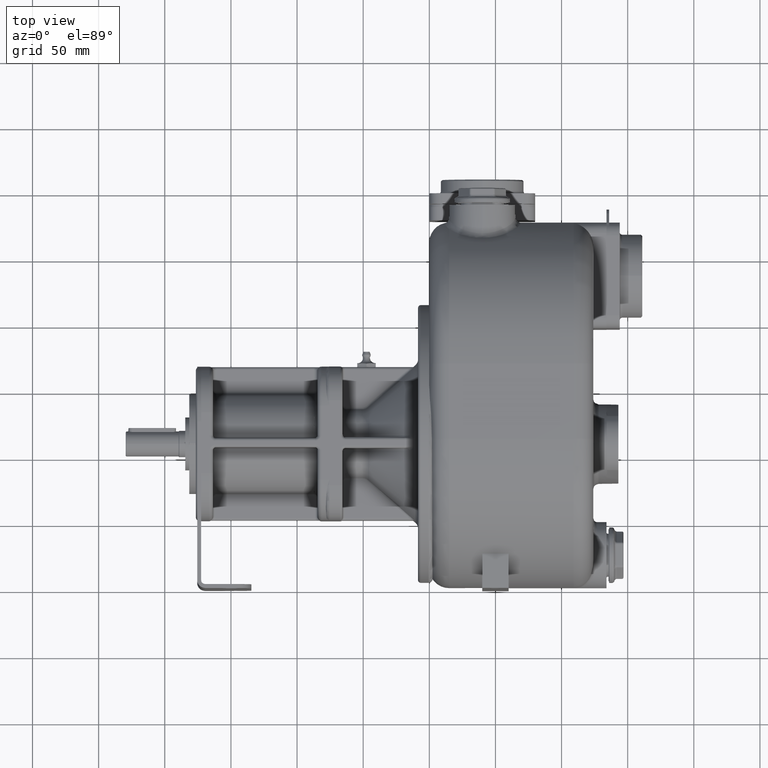
[diagram: clean part render]
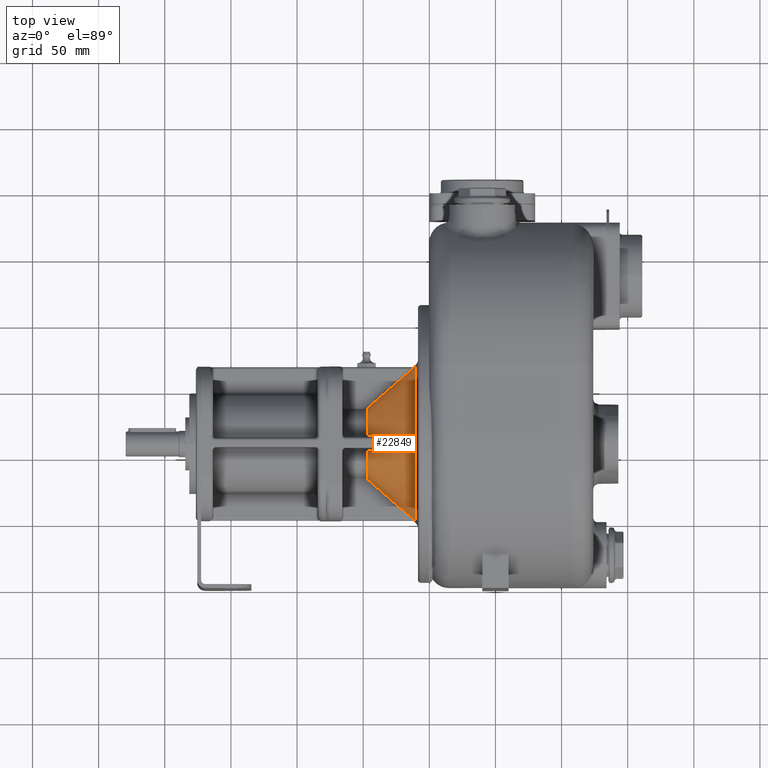
[diagram: same view with one face highlighted and labeled with its STEP entity id]
A machine part, top view. The second image highlights one B-rep face of the part: STEP entity #22849.
In plain terms, the highlighted conical surface has half-angle 40 deg.
Its self-contained STEP definition (entity closure, byte-faithful):
#5907=DIRECTION('',(7.660442050024E-1,-6.427878934627E-1,3.470816919564E-12));
#5908=VECTOR('',#5907,1.473006843776E0);
#5909=CARTESIAN_POINT('',(-6.177166269848E1,5.153208930424E1,
-4.209174529895E-12));
#5910=LINE('',#5909,#5908);
#5916=DIRECTION('',(7.660442053993E-1,6.427878929898E-1,-3.426566255286E-12));
#5917=VECTOR('',#5916,1.473006843776E0);
#5918=CARTESIAN_POINT('',(-6.177166269907E1,1.684679106965E2,
4.142164205678E-12));
#5919=LINE('',#5918,#5917);
#6757=CARTESIAN_POINT('',(-6.615670070720E1,1.041632190064E2,5.447662244532E1));
#6758=CARTESIAN_POINT('',(-6.605596487385E1,1.041629687514E2,5.456160259990E1));
#6759=CARTESIAN_POINT('',(-6.585661195174E1,1.041677110169E2,5.473036608960E1));
#6760=CARTESIAN_POINT('',(-6.556318024783E1,1.041902680673E2,5.498035479103E1));
#6761=CARTESIAN_POINT('',(-6.527730344996E1,1.042274524862E2,5.522547076429E1));
#6762=CARTESIAN_POINT('',(-6.500012186262E1,1.042787040815E2,5.546463117071E1));
#6763=CARTESIAN_POINT('',(-6.473288331561E1,1.043431907229E2,5.569664939220E1));
#6764=CARTESIAN_POINT('',(-6.447661561340E1,1.044197384846E2,5.592048292267E1));
#6765=CARTESIAN_POINT('',(-6.423248078870E1,1.045073354573E2,5.613499597771E1));
#6766=CARTESIAN_POINT('',(-6.400116539531E1,1.046048277625E2,5.633944281932E1));
#6767=CARTESIAN_POINT('',(-6.378276335703E1,1.047109336166E2,5.653357161062E1));
#6768=CARTESIAN_POINT('',(-6.357755796456E1,1.048247219169E2,5.671701128499E1));
#6769=CARTESIAN_POINT('',(-6.338560123394E1,1.049451232231E2,5.688957946562E1));
#6770=CARTESIAN_POINT('',(-6.320655571261E1,1.050709559760E2,5.705142105506E1));
#6771=CARTESIAN_POINT('',(-6.304029143997E1,1.052014985158E2,5.720255494854E1));
#6772=CARTESIAN_POINT('',(-6.288652101803E1,1.053359100652E2,5.734312868081E1));
#6773=CARTESIAN_POINT('',(-6.274464618598E1,1.054732500874E2,5.747355164821E1));
#6774=CARTESIAN_POINT('',(-6.261431088306E1,1.056130171274E2,5.759407165385E1));
#6775=CARTESIAN_POINT('',(-6.249506490692E1,1.057547163363E2,5.770502028596E1));
#6776=CARTESIAN_POINT('',(-6.238624933596E1,1.058977282988E2,5.780690051436E1));
#6777=CARTESIAN_POINT('',(-6.228741698541E1,1.060416820391E2,5.790006005553E1));
#6778=CARTESIAN_POINT('',(-6.219813520485E1,1.061863668314E2,5.798484796853E1));
#6779=CARTESIAN_POINT('',(-6.211785941128E1,1.063314891915E2,5.806170365395E1));
#6780=CARTESIAN_POINT('',(-6.204616352011E1,1.064766813477E2,5.813096494787E1));
#6781=CARTESIAN_POINT('',(-6.198272367383E1,1.066217115777E2,5.819289500184E1));
#6782=CARTESIAN_POINT('',(-6.192715029888E1,1.067664797926E2,5.824782138097E1));
#6783=CARTESIAN_POINT('',(-6.187902169399E1,1.069109875563E2,5.829610438039E1));
#6784=CARTESIAN_POINT('',(-6.183795357672E1,1.070551647336E2,5.833806887883E1));
#6785=CARTESIAN_POINT('',(-6.180366801666E1,1.071992137057E2,5.837396376089E1));
#6786=CARTESIAN_POINT('',(-6.177607059178E1,1.073430930129E2,5.840386966451E1));
#6787=CARTESIAN_POINT('',(-6.175486078990E1,1.074863789764E2,5.842802492547E1));
#6788=CARTESIAN_POINT('',(-6.173986645330E1,1.076291316696E2,5.844658236592E1));
#6789=CARTESIAN_POINT('',(-6.173111752313E1,1.077703318698E2,5.845948514500E1));
#6790=CARTESIAN_POINT('',(-6.172818744113E1,1.079115558415E2,5.846716007901E1));
#6791=CARTESIAN_POINT('',(-6.173006415562E1,1.080046899953E2,5.846879932259E1));
#6792=CARTESIAN_POINT('',(-6.173195015501E1,1.080510006196E2,5.846875921689E1));
#6794=CARTESIAN_POINT('',(-6.173195015501E1,1.080510006196E2,5.846875921689E1));
#6795=CARTESIAN_POINT('',(-6.174524379494E1,1.083772926862E2,5.846847497189E1));
#6796=CARTESIAN_POINT('',(-6.176510585039E1,1.090292187820E2,5.846806641038E1));
#6797=CARTESIAN_POINT('',(-6.177503762473E1,1.100050089272E2,5.846781336301E1));
#6798=CARTESIAN_POINT('',(-6.176469435276E1,1.109827831440E2,5.846816851076E1));
#6799=CARTESIAN_POINT('',(-6.174546013205E1,1.116253919338E2,5.846823732025E1));
#6800=CARTESIAN_POINT('',(-6.173211282453E1,1.119525683151E2,5.846850619344E1));
#6802=CARTESIAN_POINT('',(-6.173211282453E1,1.119525683151E2,5.846850619344E1));
#6803=CARTESIAN_POINT('',(-6.173032701874E1,1.119961215749E2,5.846854621897E1));
#6804=CARTESIAN_POINT('',(-6.172796333134E1,1.120955362102E2,5.846709967457E1));
#6805=CARTESIAN_POINT('',(-6.173136855757E1,1.122336573161E2,5.845911891417E1));
#6806=CARTESIAN_POINT('',(-6.174025229251E1,1.123751640489E2,5.844608468890E1));
#6807=CARTESIAN_POINT('',(-6.175527933486E1,1.125172114372E2,5.842751797360E1));
#6808=CARTESIAN_POINT('',(-6.177659855493E1,1.126599760839E2,5.840328614661E1));
#6809=CARTESIAN_POINT('',(-6.180426524863E1,1.128032906423E2,5.837334140369E1));
#6810=CARTESIAN_POINT('',(-6.183848226837E1,1.129469654317E2,5.833751685901E1));
#6811=CARTESIAN_POINT('',(-6.187956006250E1,1.130908219479E2,5.829555583456E1));
#6812=CARTESIAN_POINT('',(-6.192773710420E1,1.132350780883E2,5.824724159309E1));
#6813=CARTESIAN_POINT('',(-6.198333872866E1,1.133797335337E2,5.819229403048E1));
#6814=CARTESIAN_POINT('',(-6.204674814666E1,1.135246104217E2,5.813039503960E1));
#6815=CARTESIAN_POINT('',(-6.211843558564E1,1.136696681614E2,5.806114600672E1));
#6816=CARTESIAN_POINT('',(-6.219884112835E1,1.138147710725E2,5.798417958108E1));
#6817=CARTESIAN_POINT('',(-6.228831085645E1,1.139596631844E2,5.789921656449E1));
#6818=CARTESIAN_POINT('',(-6.238742730692E1,1.141039936424E2,5.780578773353E1));
#6819=CARTESIAN_POINT('',(-6.249674504099E1,1.142473870506E2,5.770345225899E1));
#6820=CARTESIAN_POINT('',(-6.261659161928E1,1.143894952296E2,5.759196134302E1));
#6821=CARTESIAN_POINT('',(-6.274749014452E1,1.145297116058E2,5.747092492310E1));
#6822=CARTESIAN_POINT('',(-6.289002275290E1,1.146673498513E2,5.733991563572E1));
#6823=CARTESIAN_POINT('',(-6.304449039364E1,1.148019110760E2,5.719873327470E1));
#6824=CARTESIAN_POINT('',(-6.321130482081E1,1.149326065246E2,5.704711343071E1));
#6825=CARTESIAN_POINT('',(-6.339086145605E1,1.150584048991E2,5.688483451538E1));
#6826=CARTESIAN_POINT('',(-6.358327404424E1,1.151785884194E2,5.671189268746E1));
#6827=CARTESIAN_POINT('',(-6.378873520119E1,1.152921860740E2,5.652824661687E1));
#6828=CARTESIAN_POINT('',(-6.400725772643E1,1.153979461461E2,5.633404133070E1));
#6829=CARTESIAN_POINT('',(-6.423854694619E1,1.154949734449E2,5.612965528070E1));
#6830=CARTESIAN_POINT('',(-6.448242477414E1,1.155821753546E2,5.591539294819E1));
#6831=CARTESIAN_POINT('',(-6.473822013404E1,1.156582433875E2,5.569200222508E1));
#6832=CARTESIAN_POINT('',(-6.500478351131E1,1.157222342020E2,5.546060181487E1));
#6833=CARTESIAN_POINT('',(-6.528105289947E1,1.157731324112E2,5.522224603999E1));
#6834=CARTESIAN_POINT('',(-6.556583767592E1,1.158100005123E2,5.497808441828E1));
#6835=CARTESIAN_POINT('',(-6.585801794927E1,1.158323128320E2,5.472917550910E1));
#6836=CARTESIAN_POINT('',(-6.605645100493E1,1.158370246237E2,5.456119633929E1));
#6837=CARTESIAN_POINT('',(-6.615669959682E1,1.158367808594E2,5.447662122035E1));
#6839=CARTESIAN_POINT('',(-6.615669959682E1,1.158367808594E2,5.447662122035E1));
#6840=CARTESIAN_POINT('',(-6.813293958936E1,1.158319751831E2,5.280938280624E1));
#6841=CARTESIAN_POINT('',(-7.186802502656E1,1.158220359194E2,4.965676095884E1));
#6842=CARTESIAN_POINT('',(-7.677361419891E1,1.158065427903E2,4.551169060776E1));
#6843=CARTESIAN_POINT('',(-8.111867894714E1,1.157903923340E2,4.183585195427E1));
#6844=CARTESIAN_POINT('',(-8.497611983365E1,1.157736164911E2,3.856812882675E1));
#6845=CARTESIAN_POINT('',(-8.840509368772E1,1.157562725723E2,3.565899840898E1));
#6846=CARTESIAN_POINT('',(-9.141171604925E1,1.157387152460E2,3.310397970210E1));
#6847=CARTESIAN_POINT('',(-9.406293373072E1,1.157210109679E2,3.084702263221E1));
#6848=CARTESIAN_POINT('',(-9.565908952329E1,1.157088958881E2,2.948563639831E1));
#6849=CARTESIAN_POINT('',(-9.640900226245E1,1.157028517119E2,2.884539967561E1));
#6851=CARTESIAN_POINT('',(-9.640900132538E1,1.1E2,0.E0));
#6852=DIRECTION('',(-1.E0,0.E0,0.E0));
#6853=DIRECTION('',(0.E0,1.939499120428E-1,9.810114329704E-1));
#6854=AXIS2_PLACEMENT_3D('',#6851,#6852,#6853);
#6856=CARTESIAN_POINT('',(-9.640900221945E1,1.371014672470E2,1.140570340390E1));
#6857=CARTESIAN_POINT('',(-9.597702519027E1,1.374918011670E2,1.141266673230E1));
#6858=CARTESIAN_POINT('',(-9.508750780741E1,1.382934269769E2,1.142650606308E1));
#6859=CARTESIAN_POINT('',(-9.369002274332E1,1.395464380919E2,1.144676365801E1));
#6860=CARTESIAN_POINT('',(-9.218788575474E1,1.408868418474E2,1.146701483152E1));
#6861=CARTESIAN_POINT('',(-9.055425326079E1,1.423378628488E2,1.148741716566E1));
#6862=CARTESIAN_POINT('',(-8.875746128826E1,1.439266896051E2,1.150814157777E1));
#6863=CARTESIAN_POINT('',(-8.676967275482E1,1.456767854455E2,1.152919417571E1));
#6864=CARTESIAN_POINT('',(-8.457814541127E1,1.475981990744E2,1.155041800881E1));
#6865=CARTESIAN_POINT('',(-8.213877452657E1,1.497283703291E2,1.157190891099E1));
#6866=CARTESIAN_POINT('',(-7.939067413932E1,1.521188806064E2,1.159378839165E1));
#6867=CARTESIAN_POINT('',(-7.630773181743E1,1.547906974900E2,1.161582170207E1));
#6868=CARTESIAN_POINT('',(-7.291077901951E1,1.577243634361E2,1.163742708760E1));
#6869=CARTESIAN_POINT('',(-6.921783130175E1,1.609035074040E2,1.165848827662E1));
#6870=CARTESIAN_POINT('',(-6.646673158455E1,1.632650220567E2,1.167197559207E1));
#6871=CARTESIAN_POINT('',(-6.502101693674E1,1.645041985187E2,1.167877330986E1));
#6873=CARTESIAN_POINT('',(-6.502101693674E1,1.645041985187E2,1.167877330986E1));
#6874=CARTESIAN_POINT('',(-6.492593057800E1,1.645857001565E2,1.167922077235E1));
#6875=CARTESIAN_POINT('',(-6.472974143873E1,1.647549113532E2,1.167517208636E1));
#6876=CARTESIAN_POINT('',(-6.445222088345E1,1.649975000607E2,1.165393777627E1));
#6877=CARTESIAN_POINT('',(-6.418141319109E1,1.652371800659E2,1.161874340217E1));
#6878=CARTESIAN_POINT('',(-6.392134750513E1,1.654703200456E2,1.157015656749E1));
#6879=CARTESIAN_POINT('',(-6.367219685599E1,1.656965284788E2,1.150907034022E1));
#6880=CARTESIAN_POINT('',(-6.343506179734E1,1.659146030842E2,1.143646104440E1));
#6881=CARTESIAN_POINT('',(-6.321077706157E1,1.661235416589E2,1.135346675876E1));
#6882=CARTESIAN_POINT('',(-6.299990979426E1,1.663225631992E2,1.126130456269E1));
#6883=CARTESIAN_POINT('',(-6.280237703916E1,1.665114867401E2,1.116101822175E1));
#6884=CARTESIAN_POINT('',(-6.261812376137E1,1.666901201583E2,1.105362708242E1));
#6885=CARTESIAN_POINT('',(-6.244697691456E1,1.668583790347E2,1.094016093602E1));
#6886=CARTESIAN_POINT('',(-6.228857616344E1,1.670163735267E2,1.082151646595E1));
#6887=CARTESIAN_POINT('',(-6.214253690914E1,1.671642612980E2,1.069848927977E1));
#6888=CARTESIAN_POINT('',(-6.200837142063E1,1.673022934896E2,1.057188478453E1));
#6889=CARTESIAN_POINT('',(-6.188563840845E1,1.674307262081E2,1.044230327012E1));
#6890=CARTESIAN_POINT('',(-6.177372186031E1,1.675499684728E2,1.031035232068E1));
#6891=CARTESIAN_POINT('',(-6.167213442545E1,1.676603635424E2,1.017642020796E1));
#6892=CARTESIAN_POINT('',(-6.158028780625E1,1.677623426107E2,1.004090031454E1));
#6893=CARTESIAN_POINT('',(-6.149773138075E1,1.678562275684E2,9.904157651614E0));
#6894=CARTESIAN_POINT('',(-6.142400053539E1,1.679423797741E2,9.766410963055E0));
#6895=CARTESIAN_POINT('',(-6.135858177540E1,1.680212132512E2,9.627818466548E0));
#6896=CARTESIAN_POINT('',(-6.130116595982E1,1.680929490910E2,9.488660057198E0));
#6897=CARTESIAN_POINT('',(-6.125141297639E1,1.681578570999E2,9.349089962024E0));
#6898=CARTESIAN_POINT('',(-6.120896403491E1,1.682162108410E2,9.209343854578E0));
#6899=CARTESIAN_POINT('',(-6.117351294191E1,1.682682728739E2,9.069453383860E0));
#6900=CARTESIAN_POINT('',(-6.114482688546E1,1.683142795318E2,8.929210123594E0));
#6901=CARTESIAN_POINT('',(-6.112253564684E1,1.683545564084E2,8.788570068583E0));
#6902=CARTESIAN_POINT('',(-6.110650512704E1,1.683892616851E2,8.647258505164E0));
#6903=CARTESIAN_POINT('',(-6.109680371417E1,1.684183163268E2,8.505427347515E0));
#6904=CARTESIAN_POINT('',(-6.109315234143E1,1.684419142777E2,8.363391791349E0));
#6905=CARTESIAN_POINT('',(-6.109552062905E1,1.684600594527E2,8.221337849380E0));
#6906=CARTESIAN_POINT('',(-6.110391760708E1,1.684727113303E2,8.079542215128E0));
#6907=CARTESIAN_POINT('',(-6.111811820992E1,1.684800840314E2,7.937893741486E0));
#6908=CARTESIAN_POINT('',(-6.113127438410E1,1.684815269813E2,7.844344442842E0));
#6909=CARTESIAN_POINT('',(-6.113888011488E1,1.684813638933E2,7.797285367833E0));
#6911=CARTESIAN_POINT('',(-6.113888011488E1,1.684813638933E2,7.797285367833E0));
#6912=CARTESIAN_POINT('',(-6.119131329696E1,1.684802578900E2,7.472685066543E0));
#6913=CARTESIAN_POINT('',(-6.128997492950E1,1.684781589777E2,6.822191429875E0));
#6914=CARTESIAN_POINT('',(-6.141870721774E1,1.684754499856E2,5.844181077168E0));
#6915=CARTESIAN_POINT('',(-6.152789558459E1,1.684731269556E2,4.864972043651E0));
#6916=CARTESIAN_POINT('',(-6.161723912549E1,1.684712109357E2,3.885973560172E0));
#6917=CARTESIAN_POINT('',(-6.168655586108E1,1.684697366978E2,2.908482017538E0));
#6918=CARTESIAN_POINT('',(-6.173583104316E1,1.684686963307E2,1.933919095842E0));
#6919=CARTESIAN_POINT('',(-6.176520124660E1,1.684680638253E2,
9.634618266447E-1));
#6920=CARTESIAN_POINT('',(-6.177165922538E1,1.684679118547E2,
3.206245965512E-1));
#6921=CARTESIAN_POINT('',(-6.177166269907E1,1.684679106965E2,
4.142164205678E-12));
#6923=CARTESIAN_POINT('',(-6.064327434188E1,1.1E2,0.E0));
#6924=DIRECTION('',(-1.E0,0.E0,0.E0));
#6925=DIRECTION('',(0.E0,-1.E0,0.E0));
#6926=AXIS2_PLACEMENT_3D('',#6923,#6924,#6925);
#6928=CARTESIAN_POINT('',(-6.177166269848E1,5.153208930424E1,
-4.209174529895E-12));
#6929=CARTESIAN_POINT('',(-6.177165899453E1,5.153208806877E1,
3.205233534961E-1));
#6930=CARTESIAN_POINT('',(-6.176520492628E1,5.153193583826E1,
9.632036383883E-1));
#6931=CARTESIAN_POINT('',(-6.173584475725E1,5.153130387887E1,1.933573540932E0));
#6932=CARTESIAN_POINT('',(-6.168657574100E1,5.153026377906E1,2.908162135381E0));
#6933=CARTESIAN_POINT('',(-6.161725789812E1,5.152878955394E1,3.885759534477E0));
#6934=CARTESIAN_POINT('',(-6.152789768488E1,5.152687205432E1,4.864941533651E0));
#6935=CARTESIAN_POINT('',(-6.141870042996E1,5.152455092131E1,5.844280017559E0));
#6936=CARTESIAN_POINT('',(-6.128988624600E1,5.152183147534E1,6.822716713476E0));
#6937=CARTESIAN_POINT('',(-6.119133406832E1,5.151975800769E1,7.472724785947E0));
#6938=CARTESIAN_POINT('',(-6.113885290179E1,5.151865243777E1,7.797611872410E0));
#6940=CARTESIAN_POINT('',(-6.113885290179E1,5.151865243777E1,7.797611872410E0));
#6941=CARTESIAN_POINT('',(-6.113125939493E1,5.151848796924E1,7.844566052401E0));
#6942=CARTESIAN_POINT('',(-6.111793719401E1,5.151990659665E1,7.938951331673E0));
#6943=CARTESIAN_POINT('',(-6.110382274756E1,5.152736525345E1,8.080679996093E0));
#6944=CARTESIAN_POINT('',(-6.109549838420E1,5.154012539672E1,8.222787597767E0));
#6945=CARTESIAN_POINT('',(-6.109311642212E1,5.155828710431E1,8.365012449331E0));
#6946=CARTESIAN_POINT('',(-6.109688537603E1,5.158200814738E1,8.507180911666E0));
#6947=CARTESIAN_POINT('',(-6.110670582305E1,5.161118253935E1,8.649108976208E0));
#6948=CARTESIAN_POINT('',(-6.112276334182E1,5.164593251469E1,8.790533872186E0));
#6949=CARTESIAN_POINT('',(-6.114519279932E1,5.168634211220E1,8.931241586818E0));
#6950=CARTESIAN_POINT('',(-6.117402429426E1,5.173249206156E1,9.071578543971E0));
#6951=CARTESIAN_POINT('',(-6.120958116077E1,5.178467382155E1,9.211622561955E0));
#6952=CARTESIAN_POINT('',(-6.125220499445E1,5.184319724623E1,9.351461721086E0));
#6953=CARTESIAN_POINT('',(-6.130213676595E1,5.190827799851E1,9.491119666860E0));
#6954=CARTESIAN_POINT('',(-6.135968610497E1,5.198014607889E1,9.630349346512E0));
#6955=CARTESIAN_POINT('',(-6.142520027342E1,5.205905130084E1,9.768843377783E0));
#6956=CARTESIAN_POINT('',(-6.149904168517E1,5.214527426054E1,9.906413464442E0));
#6957=CARTESIAN_POINT('',(-6.158161706843E1,5.223915012918E1,1.004297364278E1));
#6958=CARTESIAN_POINT('',(-6.167340203019E1,5.234104218701E1,1.017826377794E1));
#6959=CARTESIAN_POINT('',(-6.177499374072E1,5.245139598834E1,1.031191510464E1));
#6960=CARTESIAN_POINT('',(-6.188684188201E1,5.257054483600E1,1.044364768954E1));
#6961=CARTESIAN_POINT('',(-6.200949193308E1,5.269887359306E1,1.057302728480E1));
#6962=CARTESIAN_POINT('',(-6.214360395383E1,5.283682495431E1,1.069942530446E1));
#6963=CARTESIAN_POINT('',(-6.228955737748E1,5.298461390338E1,1.082230275955E1));
#6964=CARTESIAN_POINT('',(-6.244786056256E1,5.314249312548E1,1.094076865614E1));
#6965=CARTESIAN_POINT('',(-6.261884062513E1,5.331058175137E1,1.105408289998E1));
#6966=CARTESIAN_POINT('',(-6.280286206573E1,5.348897621607E1,1.116126081699E1));
#6967=CARTESIAN_POINT('',(-6.300008792677E1,5.367760719138E1,1.126139361718E1));
#6968=CARTESIAN_POINT('',(-6.321066956972E1,5.387635581683E1,1.135341425083E1));
#6969=CARTESIAN_POINT('',(-6.343471417221E1,5.408507384376E1,1.143633688311E1));
#6970=CARTESIAN_POINT('',(-6.367167049957E1,5.430299102255E1,1.150892747276E1));
#6971=CARTESIAN_POINT('',(-6.392075779590E1,5.452914830142E1,1.157003123621E1));
#6972=CARTESIAN_POINT('',(-6.418099101168E1,5.476244278874E1,1.161867153352E1));
#6973=CARTESIAN_POINT('',(-6.445195284759E1,5.500227047642E1,1.165394060402E1));
#6974=CARTESIAN_POINT('',(-6.473072538112E1,5.524593523925E1,1.167518242811E1));
#6975=CARTESIAN_POINT('',(-6.492582028792E1,5.541422064334E1,1.167929508152E1));
#6976=CARTESIAN_POINT('',(-6.502191649268E1,5.549658875460E1,1.167884351052E1));
#6978=CARTESIAN_POINT('',(-6.502191649268E1,5.549658875460E1,1.167884351052E1));
#6979=CARTESIAN_POINT('',(-6.645117227362E1,5.672165949178E1,1.167212256099E1));
#6980=CARTESIAN_POINT('',(-6.917622552960E1,5.906074919350E1,1.165866870234E1));
#6981=CARTESIAN_POINT('',(-7.284265430014E1,6.221693241676E1,1.163783781314E1));
#6982=CARTESIAN_POINT('',(-7.621670387428E1,6.513057523446E1,1.161642829700E1));
#6983=CARTESIAN_POINT('',(-7.930727384395E1,6.780869760118E1,1.159442143297E1));
#6984=CARTESIAN_POINT('',(-8.208019310908E1,7.022055660573E1,1.157240342710E1));
#6985=CARTESIAN_POINT('',(-8.453610827089E1,7.236500810893E1,1.155080977738E1));
#6986=CARTESIAN_POINT('',(-8.674202342249E1,7.429891033637E1,1.152947753203E1));
#6987=CARTESIAN_POINT('',(-8.873989529222E1,7.605780451479E1,1.150833724325E1));
#6988=CARTESIAN_POINT('',(-9.054127405393E1,7.765063227902E1,1.148757415452E1));
#6989=CARTESIAN_POINT('',(-9.217742755353E1,7.910384650532E1,1.146715209303E1));
#6990=CARTESIAN_POINT('',(-9.368134759664E1,8.044579909561E1,1.144688120106E1));
#6991=CARTESIAN_POINT('',(-9.508144072199E1,8.170111351711E1,1.142659728250E1));
#6992=CARTESIAN_POINT('',(-9.597474993304E1,8.250614281067E1,1.141270343446E1));
#6993=CARTESIAN_POINT('',(-9.640900221988E1,8.289853275254E1,1.140570340410E1));
#6995=CARTESIAN_POINT('',(-9.640900132538E1,1.1E2,0.E0));
#6996=DIRECTION('',(-1.E0,0.E0,0.E0));
#6997=DIRECTION('',(0.E0,-9.217015387176E-1,3.878998240856E-1));
#6998=AXIS2_PLACEMENT_3D('',#6995,#6996,#6997);
#7000=CARTESIAN_POINT('',(-9.640900226244E1,1.042971482881E2,2.884539967560E1));
#7001=CARTESIAN_POINT('',(-9.566098564268E1,1.042911194E2,2.948401754851E1));
#7002=CARTESIAN_POINT('',(-9.406772807293E1,1.042790234207E2,3.084293559774E1));
#7003=CARTESIAN_POINT('',(-9.141880588564E1,1.042613291735E2,3.309795007160E1));
#7004=CARTESIAN_POINT('',(-8.841047940532E1,1.042437560439E2,3.565442627600E1));
#7005=CARTESIAN_POINT('',(-8.498126990316E1,1.042264072975E2,3.856376351467E1));
#7006=CARTESIAN_POINT('',(-8.112183460445E1,1.042096199192E2,4.183318126313E1));
#7007=CARTESIAN_POINT('',(-7.677590025797E1,1.041934647553E2,4.550975855364E1));
#7008=CARTESIAN_POINT('',(-7.186868845469E1,1.041779657992E2,4.965620010027E1));
#7009=CARTESIAN_POINT('',(-6.813312295645E1,1.041680251300E2,5.280923035958E1));
#7010=CARTESIAN_POINT('',(-6.615670070720E1,1.041632190064E2,5.447662244532E1));
#7080=CARTESIAN_POINT('',(-9.640900221988E1,8.289853275254E1,1.140570340410E1));
#9904=CARTESIAN_POINT('',(-9.640900226245E1,1.157028517119E2,2.884539967561E1));
#12223=CARTESIAN_POINT('',(-6.064327434188E1,5.058525833808E1,
2.706531545518E-14));
#12224=CARTESIAN_POINT('',(-6.064327434188E1,1.694147416619E2,
-1.978906038180E-14));
#12225=VERTEX_POINT('',#12223);
#12226=VERTEX_POINT('',#12224);
#12291=VERTEX_POINT('',#6856);
#12292=VERTEX_POINT('',#6871);
#12328=VERTEX_POINT('',#9904);
#12330=VERTEX_POINT('',#6839);
#12331=VERTEX_POINT('',#7000);
#12332=VERTEX_POINT('',#7010);
#12368=VERTEX_POINT('',#7080);
#12370=VERTEX_POINT('',#6978);
#12462=CARTESIAN_POINT('',(-6.113886461156E1,5.151864609681E1,
7.797509117679E0));
#12463=VERTEX_POINT('',#12462);
#12464=CARTESIAN_POINT('',(-6.173194895038E1,1.080510413093E2,
5.846876156694E1));
#12465=VERTEX_POINT('',#12464);
#12466=CARTESIAN_POINT('',(-6.173195171175E1,1.119489558907E2,
5.846876470659E1));
#12467=VERTEX_POINT('',#12466);
#12470=CARTESIAN_POINT('',(-6.113885640158E1,1.684813507830E2,
7.797513857899E0));
#12471=VERTEX_POINT('',#12470);
#12473=VERTEX_POINT('',#6921);
#12474=VERTEX_POINT('',#6928);
#22814=CARTESIAN_POINT('',(-7.852613783363E1,1.1E2,0.E0));
#22815=DIRECTION('',(1.E0,0.E0,0.E0));
#22816=DIRECTION('',(0.E0,-1.E0,0.E0));
#22817=AXIS2_PLACEMENT_3D('',#22814,#22815,#22816);
#22818=CONICAL_SURFACE('',#22817,4.440923750161E1,4.E1);
#22820=ORIENTED_EDGE('',*,*,#22819,.T.);
#22822=ORIENTED_EDGE('',*,*,#22821,.T.);
#22824=ORIENTED_EDGE('',*,*,#22823,.T.);
#22826=ORIENTED_EDGE('',*,*,#22825,.T.);
#22828=ORIENTED_EDGE('',*,*,#22827,.T.);
#22830=ORIENTED_EDGE('',*,*,#22829,.T.);
#22831=ORIENTED_EDGE('',*,*,#22804,.T.);
#22833=ORIENTED_EDGE('',*,*,#22832,.T.);
#22834=ORIENTED_EDGE('',*,*,#21716,.T.);
#22835=ORIENTED_EDGE('',*,*,#21672,.F.);
#22836=ORIENTED_EDGE('',*,*,#21713,.F.);
#22838=ORIENTED_EDGE('',*,*,#22837,.T.);
#22840=ORIENTED_EDGE('',*,*,#22839,.T.);
#22842=ORIENTED_EDGE('',*,*,#22841,.T.);
#22844=ORIENTED_EDGE('',*,*,#22843,.T.);
#22846=ORIENTED_EDGE('',*,*,#22845,.T.);
#22847=EDGE_LOOP('',(#22820,#22822,#22824,#22826,#22828,#22830,#22831,#22833,
#22834,#22835,#22836,#22838,#22840,#22842,#22844,#22846));
#22848=FACE_OUTER_BOUND('',#22847,.F.);
#22849=ADVANCED_FACE('',(#22848),#22818,.T.);
#6793=B_SPLINE_CURVE_WITH_KNOTS('',3,(#6757,#6758,#6759,#6760,#6761,#6762,#6763,
#6764,#6765,#6766,#6767,#6768,#6769,#6770,#6771,#6772,#6773,#6774,#6775,#6776,
#6777,#6778,#6779,#6780,#6781,#6782,#6783,#6784,#6785,#6786,#6787,#6788,#6789,
#6790,#6791,#6792),.UNSPECIFIED.,.F.,.F.,(4,1,1,1,1,1,1,1,1,1,1,1,1,1,1,1,1,1,1,
1,1,1,1,1,1,1,1,1,1,1,1,1,1,4),(0.E0,3.030303030303E-2,6.060606060606E-2,
9.090909090909E-2,1.212121212121E-1,1.515151515152E-1,1.818181818182E-1,
2.121212121212E-1,2.424242424242E-1,2.727272727273E-1,3.030303030303E-1,
3.333333333333E-1,3.636363636364E-1,3.939393939394E-1,4.242424242424E-1,
4.545454545455E-1,4.848484848485E-1,5.151515151515E-1,5.454545454545E-1,
5.757575757576E-1,6.060606060606E-1,6.363636363636E-1,6.666666666667E-1,
6.969696969697E-1,7.272727272727E-1,7.575757575758E-1,7.878787878788E-1,
8.181818181818E-1,8.484848484848E-1,8.787878787879E-1,9.090909090909E-1,
9.393939393939E-1,9.696969696970E-1,1.E0),.UNSPECIFIED.);
#6801=B_SPLINE_CURVE_WITH_KNOTS('',3,(#6794,#6795,#6796,#6797,#6798,#6799,
#6800),.UNSPECIFIED.,.F.,.F.,(4,1,1,1,4),(0.E0,2.5E-1,5.E-1,7.5E-1,1.E0),
.UNSPECIFIED.);
#6838=B_SPLINE_CURVE_WITH_KNOTS('',3,(#6802,#6803,#6804,#6805,#6806,#6807,#6808,
#6809,#6810,#6811,#6812,#6813,#6814,#6815,#6816,#6817,#6818,#6819,#6820,#6821,
#6822,#6823,#6824,#6825,#6826,#6827,#6828,#6829,#6830,#6831,#6832,#6833,#6834,
#6835,#6836,#6837),.UNSPECIFIED.,.F.,.F.,(4,1,1,1,1,1,1,1,1,1,1,1,1,1,1,1,1,1,1,
1,1,1,1,1,1,1,1,1,1,1,1,1,1,4),(0.E0,3.030303030303E-2,6.060606060606E-2,
9.090909090909E-2,1.212121212121E-1,1.515151515152E-1,1.818181818182E-1,
2.121212121212E-1,2.424242424242E-1,2.727272727273E-1,3.030303030303E-1,
3.333333333333E-1,3.636363636364E-1,3.939393939394E-1,4.242424242424E-1,
4.545454545455E-1,4.848484848485E-1,5.151515151515E-1,5.454545454545E-1,
5.757575757576E-1,6.060606060606E-1,6.363636363636E-1,6.666666666667E-1,
6.969696969697E-1,7.272727272727E-1,7.575757575758E-1,7.878787878788E-1,
8.181818181818E-1,8.484848484848E-1,8.787878787879E-1,9.090909090909E-1,
9.393939393939E-1,9.696969696970E-1,1.E0),.UNSPECIFIED.);
#6850=B_SPLINE_CURVE_WITH_KNOTS('',3,(#6839,#6840,#6841,#6842,#6843,#6844,#6845,
#6846,#6847,#6848,#6849),.UNSPECIFIED.,.F.,.F.,(4,1,1,1,1,1,1,1,4),(0.E0,
1.25E-1,2.5E-1,3.75E-1,5.E-1,6.25E-1,7.5E-1,8.75E-1,1.E0),.UNSPECIFIED.);
#6855=CIRCLE('',#6854,2.940373334129E1);
#6872=B_SPLINE_CURVE_WITH_KNOTS('',3,(#6856,#6857,#6858,#6859,#6860,#6861,#6862,
#6863,#6864,#6865,#6866,#6867,#6868,#6869,#6870,#6871),.UNSPECIFIED.,.F.,.F.,(4,
1,1,1,1,1,1,1,1,1,1,1,1,4),(0.E0,7.692307692308E-2,1.538461538462E-1,
2.307692307692E-1,3.076923076923E-1,3.846153846154E-1,4.615384615385E-1,
5.384615384615E-1,6.153846153846E-1,6.923076923077E-1,7.692307692308E-1,
8.461538461538E-1,9.230769230769E-1,1.E0),.UNSPECIFIED.);
#6910=B_SPLINE_CURVE_WITH_KNOTS('',3,(#6873,#6874,#6875,#6876,#6877,#6878,#6879,
#6880,#6881,#6882,#6883,#6884,#6885,#6886,#6887,#6888,#6889,#6890,#6891,#6892,
#6893,#6894,#6895,#6896,#6897,#6898,#6899,#6900,#6901,#6902,#6903,#6904,#6905,
#6906,#6907,#6908,#6909),.UNSPECIFIED.,.F.,.F.,(4,1,1,1,1,1,1,1,1,1,1,1,1,1,1,1,
1,1,1,1,1,1,1,1,1,1,1,1,1,1,1,1,1,1,4),(0.E0,2.941176470588E-2,
5.882352941176E-2,8.823529411765E-2,1.176470588235E-1,1.470588235294E-1,
1.764705882353E-1,2.058823529412E-1,2.352941176471E-1,2.647058823529E-1,
2.941176470588E-1,3.235294117647E-1,3.529411764706E-1,3.823529411765E-1,
4.117647058824E-1,4.411764705882E-1,4.705882352941E-1,5.E-1,5.294117647059E-1,
5.588235294118E-1,5.882352941176E-1,6.176470588235E-1,6.470588235294E-1,
6.764705882353E-1,7.058823529412E-1,7.352941176471E-1,7.647058823529E-1,
7.941176470588E-1,8.235294117647E-1,8.529411764706E-1,8.823529411765E-1,
9.117647058824E-1,9.411764705882E-1,9.705882352941E-1,1.E0),.UNSPECIFIED.);
#6922=B_SPLINE_CURVE_WITH_KNOTS('',3,(#6911,#6912,#6913,#6914,#6915,#6916,#6917,
#6918,#6919,#6920,#6921),.UNSPECIFIED.,.F.,.F.,(4,1,1,1,1,1,1,1,4),(0.E0,
1.25E-1,2.5E-1,3.75E-1,5.E-1,6.25E-1,7.5E-1,8.75E-1,1.E0),.UNSPECIFIED.);
#6927=CIRCLE('',#6926,5.941474166192E1);
#6939=B_SPLINE_CURVE_WITH_KNOTS('',3,(#6928,#6929,#6930,#6931,#6932,#6933,#6934,
#6935,#6936,#6937,#6938),.UNSPECIFIED.,.F.,.F.,(4,1,1,1,1,1,1,1,4),(0.E0,
1.25E-1,2.5E-1,3.75E-1,5.E-1,6.25E-1,7.5E-1,8.75E-1,1.E0),.UNSPECIFIED.);
#6977=B_SPLINE_CURVE_WITH_KNOTS('',3,(#6940,#6941,#6942,#6943,#6944,#6945,#6946,
#6947,#6948,#6949,#6950,#6951,#6952,#6953,#6954,#6955,#6956,#6957,#6958,#6959,
#6960,#6961,#6962,#6963,#6964,#6965,#6966,#6967,#6968,#6969,#6970,#6971,#6972,
#6973,#6974,#6975,#6976),.UNSPECIFIED.,.F.,.F.,(4,1,1,1,1,1,1,1,1,1,1,1,1,1,1,1,
1,1,1,1,1,1,1,1,1,1,1,1,1,1,1,1,1,1,4),(0.E0,2.941176470588E-2,
5.882352941176E-2,8.823529411765E-2,1.176470588235E-1,1.470588235294E-1,
1.764705882353E-1,2.058823529412E-1,2.352941176471E-1,2.647058823529E-1,
2.941176470588E-1,3.235294117647E-1,3.529411764706E-1,3.823529411765E-1,
4.117647058824E-1,4.411764705882E-1,4.705882352941E-1,5.E-1,5.294117647059E-1,
5.588235294118E-1,5.882352941176E-1,6.176470588235E-1,6.470588235294E-1,
6.764705882353E-1,7.058823529412E-1,7.352941176471E-1,7.647058823529E-1,
7.941176470588E-1,8.235294117647E-1,8.529411764706E-1,8.823529411765E-1,
9.117647058824E-1,9.411764705882E-1,9.705882352941E-1,1.E0),.UNSPECIFIED.);
#6994=B_SPLINE_CURVE_WITH_KNOTS('',3,(#6978,#6979,#6980,#6981,#6982,#6983,#6984,
#6985,#6986,#6987,#6988,#6989,#6990,#6991,#6992,#6993),.UNSPECIFIED.,.F.,.F.,(4,
1,1,1,1,1,1,1,1,1,1,1,1,4),(0.E0,7.692307692308E-2,1.538461538462E-1,
2.307692307692E-1,3.076923076923E-1,3.846153846154E-1,4.615384615385E-1,
5.384615384615E-1,6.153846153846E-1,6.923076923077E-1,7.692307692308E-1,
8.461538461538E-1,9.230769230769E-1,1.E0),.UNSPECIFIED.);
#6999=CIRCLE('',#6998,2.940373334129E1);
#7011=B_SPLINE_CURVE_WITH_KNOTS('',3,(#7000,#7001,#7002,#7003,#7004,#7005,#7006,
#7007,#7008,#7009,#7010),.UNSPECIFIED.,.F.,.F.,(4,1,1,1,1,1,1,1,4),(0.E0,
1.25E-1,2.5E-1,3.75E-1,5.E-1,6.25E-1,7.5E-1,8.75E-1,1.E0),.UNSPECIFIED.);
#21672=EDGE_CURVE('',#12225,#12226,#6927,.T.);
#21713=EDGE_CURVE('',#12474,#12225,#5910,.T.);
#21716=EDGE_CURVE('',#12473,#12226,#5919,.T.);
#22804=EDGE_CURVE('',#12292,#12471,#6910,.T.);
#22819=EDGE_CURVE('',#12332,#12465,#6793,.T.);
#22821=EDGE_CURVE('',#12465,#12467,#6801,.T.);
#22823=EDGE_CURVE('',#12467,#12330,#6838,.T.);
#22825=EDGE_CURVE('',#12330,#12328,#6850,.T.);
#22827=EDGE_CURVE('',#12328,#12291,#6855,.T.);
#22829=EDGE_CURVE('',#12291,#12292,#6872,.T.);
#22832=EDGE_CURVE('',#12471,#12473,#6922,.T.);
#22837=EDGE_CURVE('',#12474,#12463,#6939,.T.);
#22839=EDGE_CURVE('',#12463,#12370,#6977,.T.);
#22841=EDGE_CURVE('',#12370,#12368,#6994,.T.);
#22843=EDGE_CURVE('',#12368,#12331,#6999,.T.);
#22845=EDGE_CURVE('',#12331,#12332,#7011,.T.);